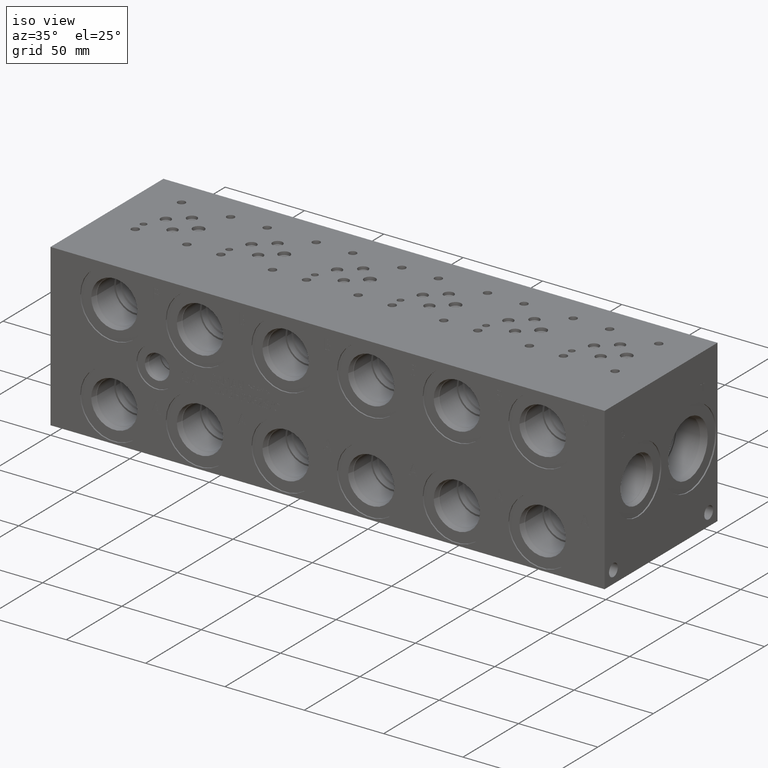
[diagram: clean part render]
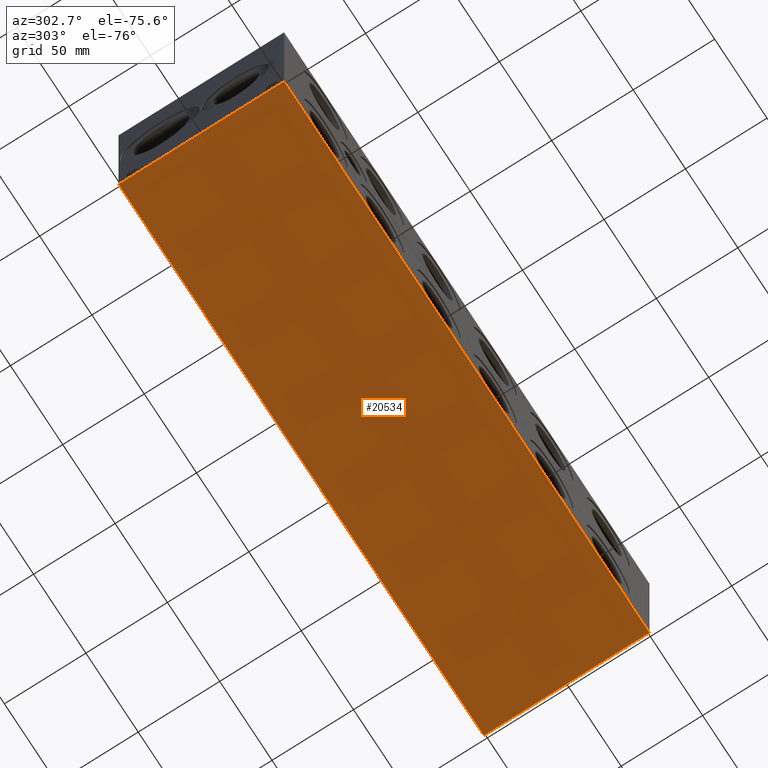
[diagram: tour spotlight — one face highlighted and labeled with its STEP entity id]
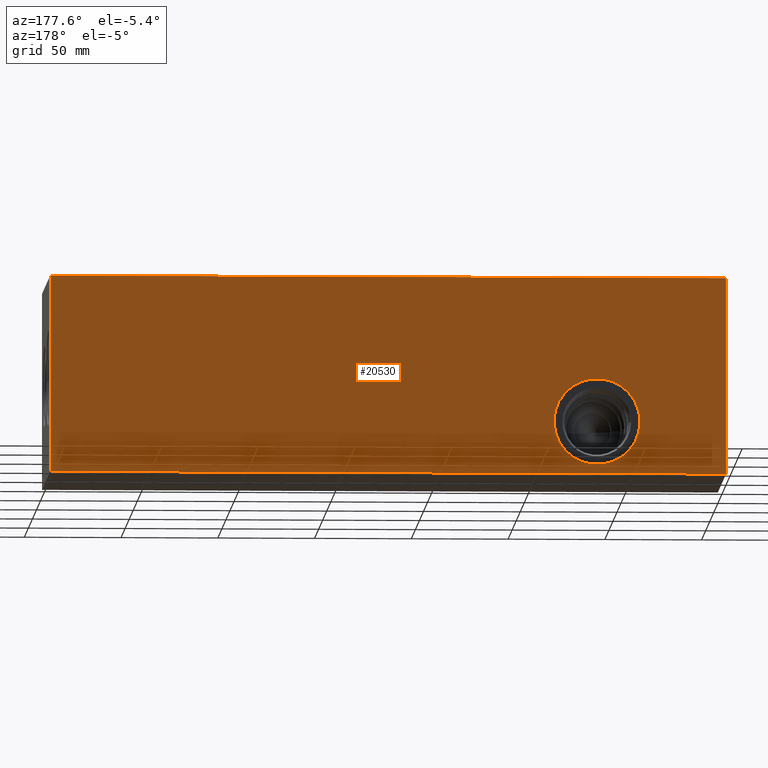
[diagram: tour spotlight — one face highlighted and labeled with its STEP entity id]
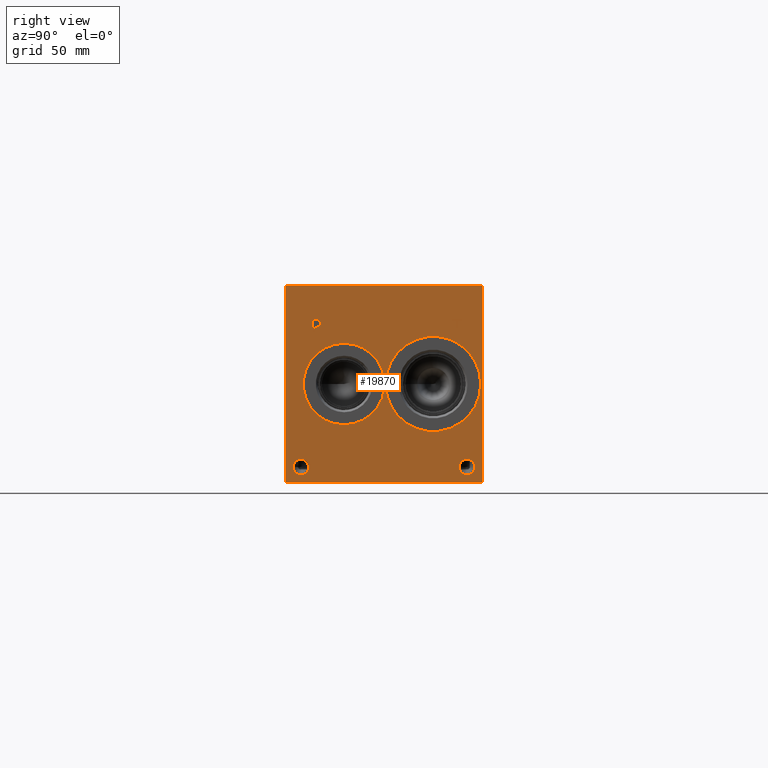
[diagram: tour spotlight — one face highlighted and labeled with its STEP entity id]
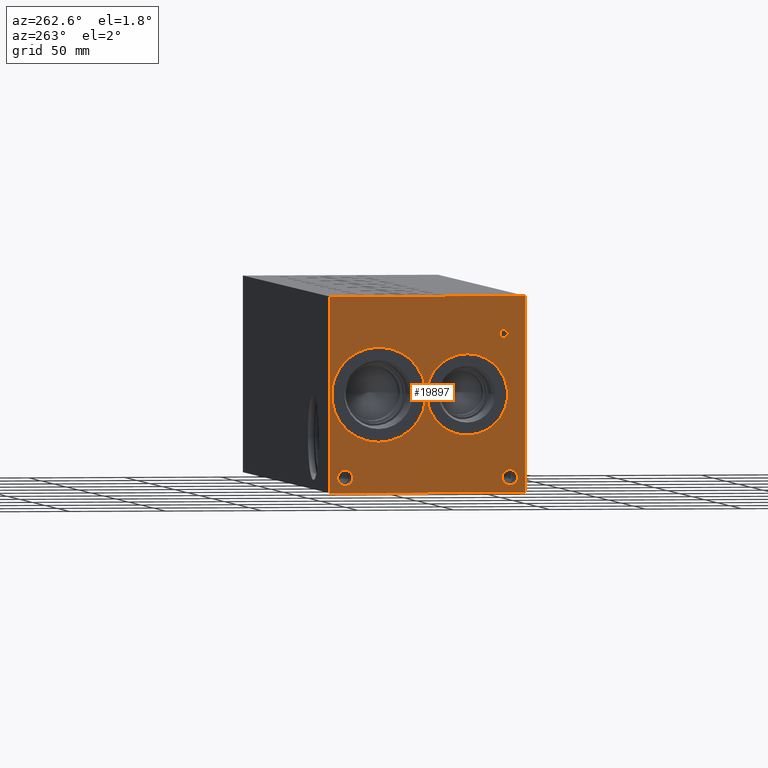
[diagram: tour spotlight — one face highlighted and labeled with its STEP entity id]
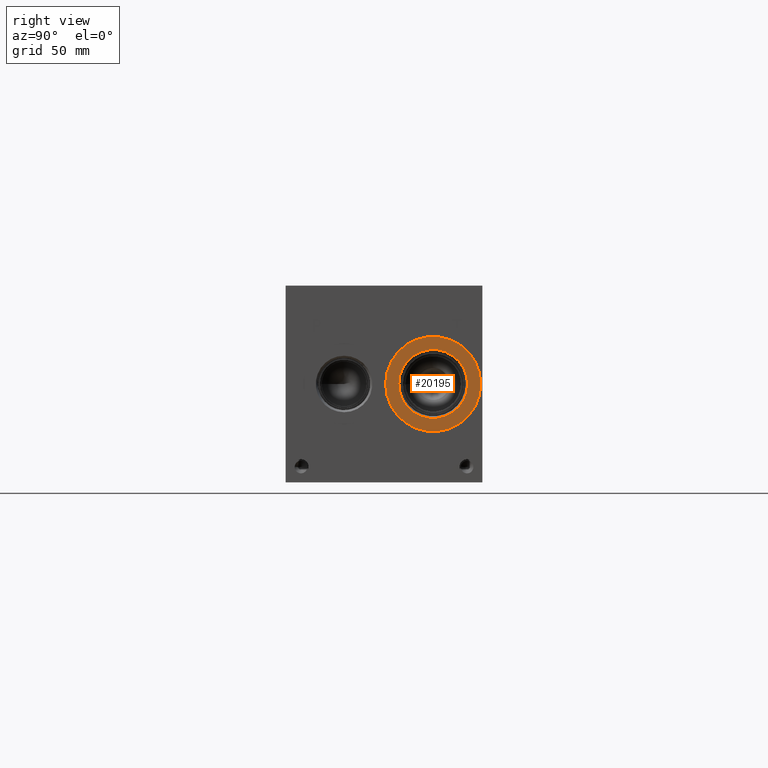
[diagram: tour spotlight — one face highlighted and labeled with its STEP entity id]
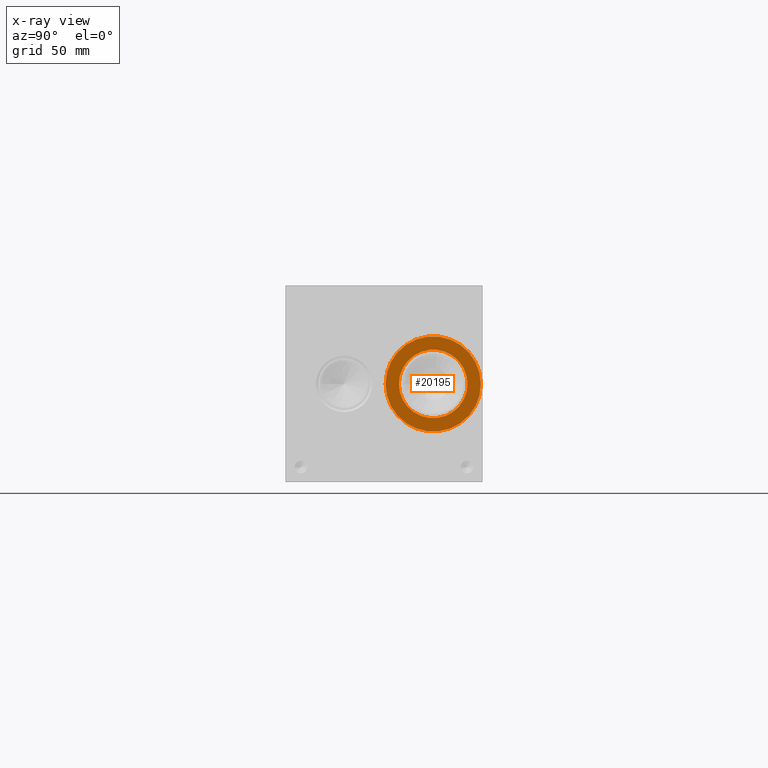
[diagram: x-ray of the same camera — body ghosted, this tour face saturated]
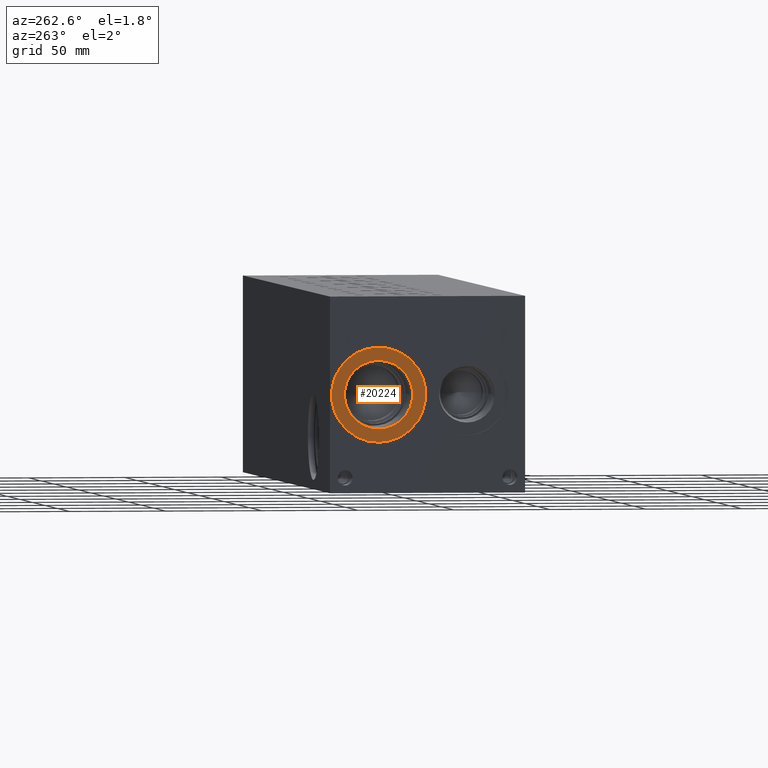
[diagram: tour spotlight — one face highlighted and labeled with its STEP entity id]
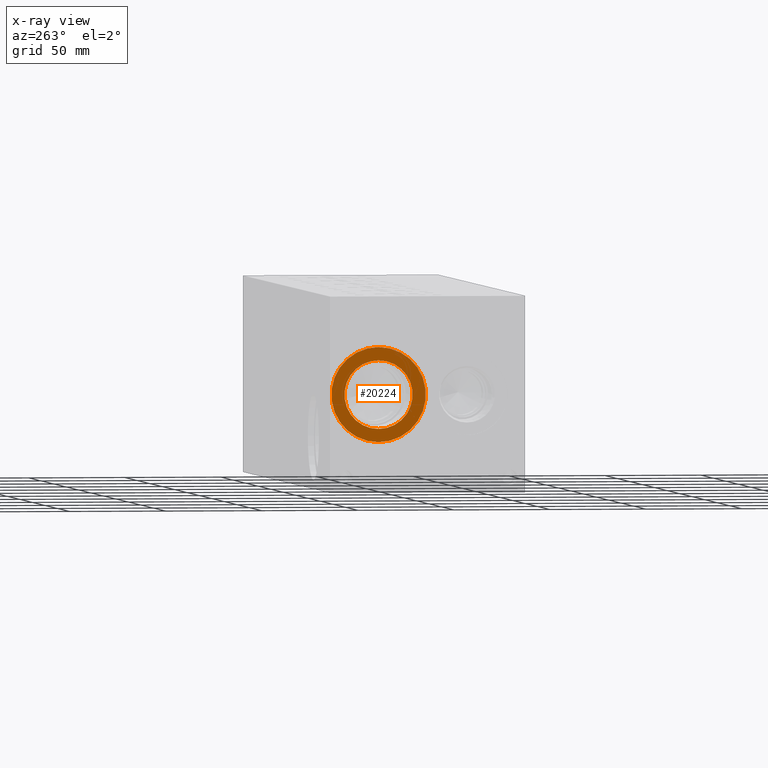
[diagram: x-ray of the same camera — body ghosted, this tour face saturated]
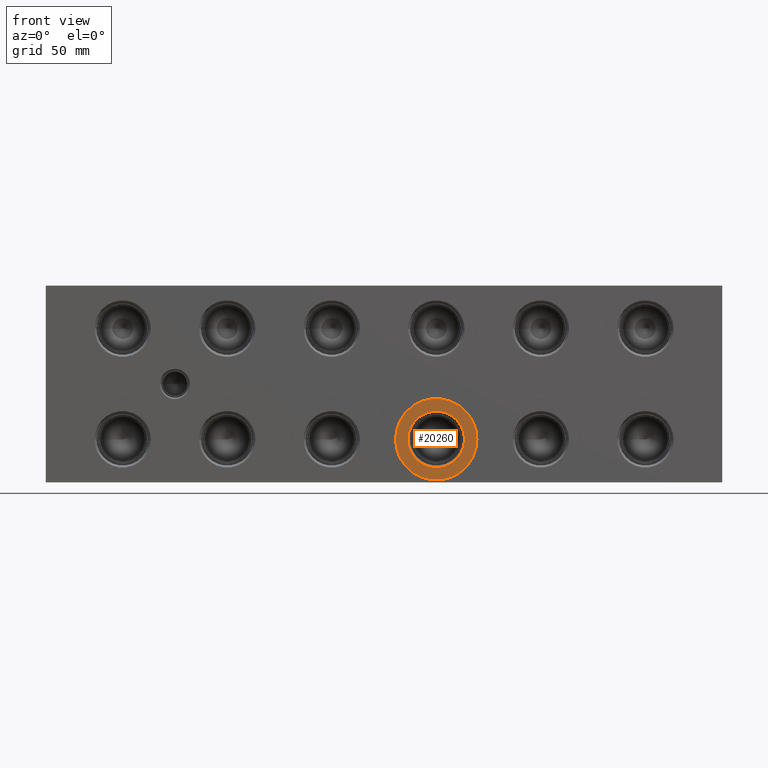
[diagram: tour spotlight — one face highlighted and labeled with its STEP entity id]
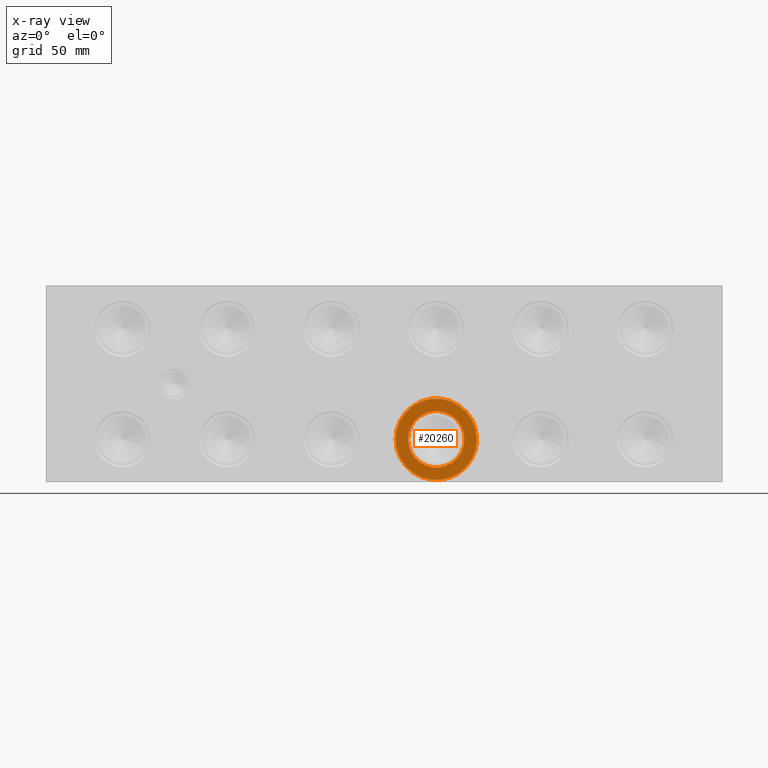
[diagram: x-ray of the same camera — body ghosted, this tour face saturated]
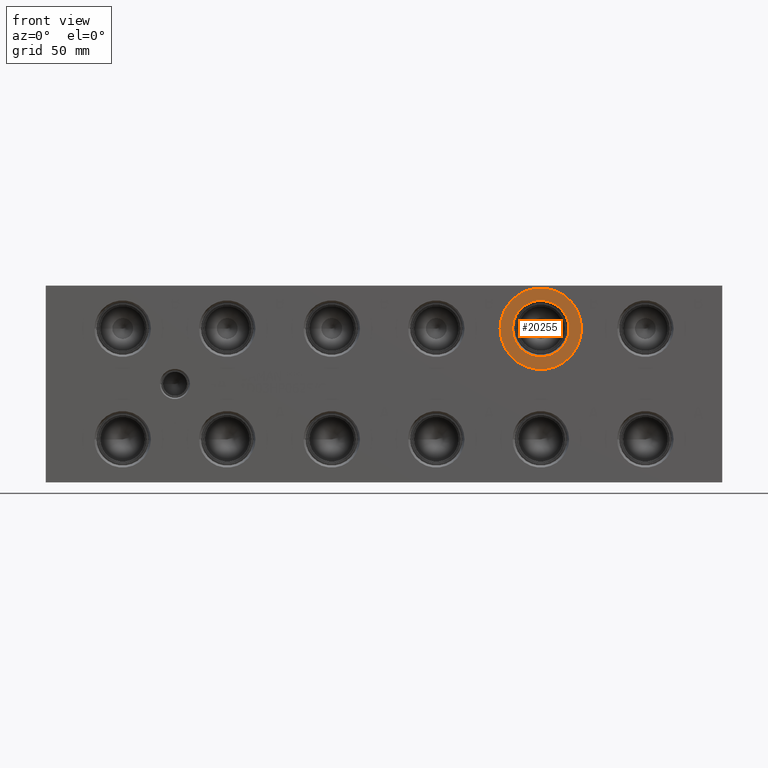
[diagram: tour spotlight — one face highlighted and labeled with its STEP entity id]
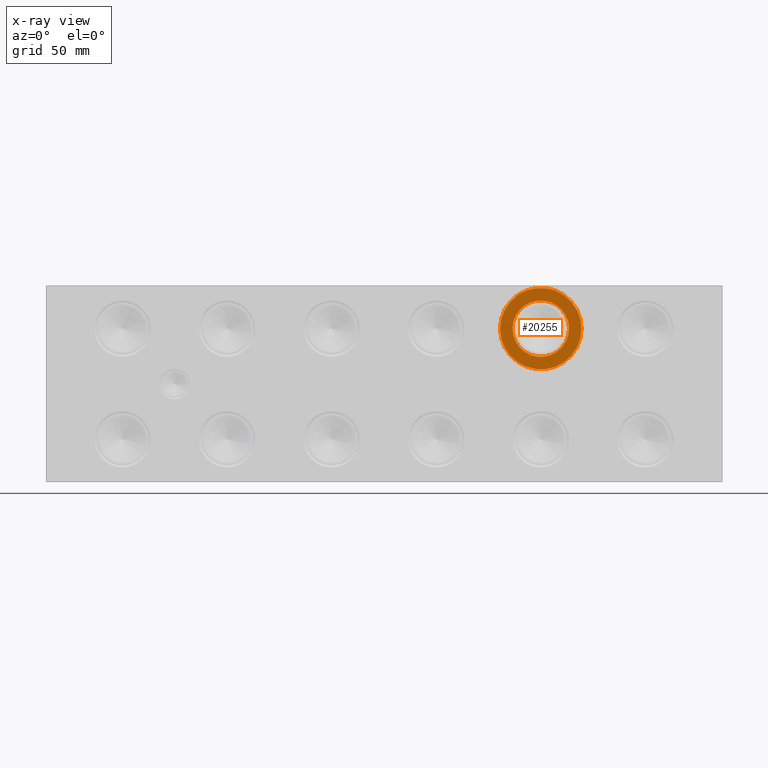
[diagram: x-ray of the same camera — body ghosted, this tour face saturated]
A machine part: a face-by-face anatomy tour. The part has 1075 B-rep faces; the first image is the clean iso view, then the 8 largest visible faces are spotlighted one at a time (largest first), each with its STEP entity span.

Face 1 — auxiliary view, entity #20534. In plain terms, the highlighted planar face has unit normal (0, 0, 1).
Definition (entity closure, byte-faithful):
#3036=FACE_OUTER_BOUND('',#4319,.T.);
#4319=EDGE_LOOP('',(#18293,#18294,#18295,#18296));
#4353=LINE('',#26873,#6044);
#5222=LINE('',#31483,#6913);
#5281=LINE('',#31755,#6972);
#6009=LINE('',#35896,#7700);
#6044=VECTOR('',#22130,10.);
#6913=VECTOR('',#23545,10.);
#6972=VECTOR('',#23658,10.);
#7700=VECTOR('',#26792,10.);
#7724=VERTEX_POINT('',#26871);
#7725=VERTEX_POINT('',#26872);
#8601=VERTEX_POINT('',#31482);
#8659=VERTEX_POINT('',#31754);
#9735=EDGE_CURVE('',#7724,#7725,#4353,.T.);
#10976=EDGE_CURVE('',#7725,#8601,#5222,.T.);
#11059=EDGE_CURVE('',#8659,#7724,#5281,.T.);
#12565=EDGE_CURVE('',#8601,#8659,#6009,.T.);
#18293=ORIENTED_EDGE('',*,*,#9735,.F.);
#18294=ORIENTED_EDGE('',*,*,#11059,.F.);
#18295=ORIENTED_EDGE('',*,*,#12565,.F.);
#18296=ORIENTED_EDGE('',*,*,#10976,.F.);
#18805=PLANE('',#22068);
#20534=ADVANCED_FACE('',(#3036),#18805,.F.);
#22068=AXIS2_PLACEMENT_3D('',#35901,#26800,#26801);
#22130=DIRECTION('',(1.,0.,0.));
#23545=DIRECTION('',(0.,1.,0.));
#23658=DIRECTION('',(0.,-1.,0.));
#26792=DIRECTION('',(-1.,0.,0.));
#26800=DIRECTION('center_axis',(0.,0.,1.));
#26801=DIRECTION('ref_axis',(1.,0.,0.));
#26871=CARTESIAN_POINT('',(0.,0.,0.));
#26872=CARTESIAN_POINT('',(349.25,0.,0.));
#26873=CARTESIAN_POINT('',(0.,0.,0.));
#31482=CARTESIAN_POINT('',(349.25,101.6,0.));
#31483=CARTESIAN_POINT('',(349.25,0.,0.));
#31754=CARTESIAN_POINT('',(0.,101.6,0.));
#31755=CARTESIAN_POINT('',(0.,101.6,0.));
#35896=CARTESIAN_POINT('',(349.25,101.6,0.));
#35901=CARTESIAN_POINT('Origin',(174.625,50.8,0.));

Face 2 — auxiliary view, entity #20530. In plain terms, the highlighted planar face has unit normal (0, 1, 0).
Definition (entity closure, byte-faithful):
#622=CIRCLE('',#21031,22.225);
#623=CIRCLE('',#21032,22.225);
#1907=FACE_BOUND('',#4261,.T.);
#3032=FACE_OUTER_BOUND('',#4260,.T.);
#4260=EDGE_LOOP('',(#18161,#18162,#18163,#18164));
#4261=EDGE_LOOP('',(#18165,#18166));
#5223=LINE('',#31485,#6914);
#5283=LINE('',#31758,#6974);
#6009=LINE('',#35896,#7700);
#6010=LINE('',#35897,#7701);
#6914=VECTOR('',#23546,10.);
#6974=VECTOR('',#23660,10.);
#7700=VECTOR('',#26792,10.);
#7701=VECTOR('',#26793,10.);
#8601=VERTEX_POINT('',#31482);
#8602=VERTEX_POINT('',#31484);
#8659=VERTEX_POINT('',#31754);
#8660=VERTEX_POINT('',#31756);
#8980=VERTEX_POINT('',#33817);
#8981=VERTEX_POINT('',#33818);
#10977=EDGE_CURVE('',#8601,#8602,#5223,.T.);
#11061=EDGE_CURVE('',#8659,#8660,#5283,.T.);
#11596=EDGE_CURVE('',#8980,#8981,#622,.T.);
#11597=EDGE_CURVE('',#8981,#8980,#623,.T.);
#12565=EDGE_CURVE('',#8601,#8659,#6009,.T.);
#12566=EDGE_CURVE('',#8602,#8660,#6010,.T.);
#18161=ORIENTED_EDGE('',*,*,#12565,.T.);
#18162=ORIENTED_EDGE('',*,*,#11061,.T.);
#18163=ORIENTED_EDGE('',*,*,#12566,.F.);
#18164=ORIENTED_EDGE('',*,*,#10977,.F.);
#18165=ORIENTED_EDGE('',*,*,#11596,.T.);
#18166=ORIENTED_EDGE('',*,*,#11597,.T.);
#18801=PLANE('',#22064);
#20530=ADVANCED_FACE('',(#3032,#1907),#18801,.T.);
#21031=AXIS2_PLACEMENT_3D('',#33819,#24401,#24402);
#21032=AXIS2_PLACEMENT_3D('',#33820,#24403,#24404);
#22064=AXIS2_PLACEMENT_3D('',#35895,#26790,#26791);
#23546=DIRECTION('',(0.,0.,1.));
#23660=DIRECTION('',(0.,0.,1.));
#24401=DIRECTION('center_axis',(0.,-1.,0.));
#24402=DIRECTION('ref_axis',(1.,0.,0.));
#24403=DIRECTION('center_axis',(0.,-1.,0.));
#24404=DIRECTION('ref_axis',(1.,0.,0.));
#26790=DIRECTION('center_axis',(0.,1.,0.));
#26791=DIRECTION('ref_axis',(-1.,0.,0.));
#26792=DIRECTION('',(-1.,0.,0.));
#26793=DIRECTION('',(-1.,0.,0.));
#31482=CARTESIAN_POINT('',(349.25,101.6,0.));
#31484=CARTESIAN_POINT('',(349.25,101.6,101.6));
#31485=CARTESIAN_POINT('',(349.25,101.6,0.));
#31754=CARTESIAN_POINT('',(0.,101.6,0.));
#31756=CARTESIAN_POINT('',(0.,101.6,101.6));
#31758=CARTESIAN_POINT('',(0.,101.6,0.));
#33817=CARTESIAN_POINT('',(88.9,101.6,26.9748));
#33818=CARTESIAN_POINT('',(44.45,101.6,26.9748));
#33819=CARTESIAN_POINT('Origin',(66.675,101.6,26.9748));
#33820=CARTESIAN_POINT('Origin',(66.675,101.6,26.9748));
#35895=CARTESIAN_POINT('Origin',(349.25,101.6,0.));
#35896=CARTESIAN_POINT('',(349.25,101.6,0.));
#35897=CARTESIAN_POINT('',(349.25,101.6,101.6));

Face 3 — right view, entity #19870. In plain terms, the highlighted planar face has unit normal (1, 0, 0).
Definition (entity closure, byte-faithful):
#606=CIRCLE('',#20835,24.5618);
#607=CIRCLE('',#20836,24.5618);
#608=CIRCLE('',#20837,21.0185);
#609=CIRCLE('',#20838,21.0185);
#610=CIRCLE('',#20839,3.9624);
#611=CIRCLE('',#20840,3.9624);
#612=CIRCLE('',#20841,3.9624);
#613=CIRCLE('',#20842,3.9624);
#1606=B_SPLINE_CURVE_WITH_KNOTS('',2,(#31384,#31385,#31386,#31387),
 .UNSPECIFIED.,.F.,.F.,(3,1,3),(0.,1.,2.),.UNSPECIFIED.);
#1608=B_SPLINE_CURVE_WITH_KNOTS('',2,(#31405,#31406,#31407,#31408),
 .UNSPECIFIED.,.F.,.F.,(3,1,3),(0.,1.,2.),.UNSPECIFIED.);
#1610=B_SPLINE_CURVE_WITH_KNOTS('',2,(#31454,#31455,#31456,#31457),
 .UNSPECIFIED.,.F.,.F.,(3,1,3),(0.,1.,2.),.UNSPECIFIED.);
#1612=B_SPLINE_CURVE_WITH_KNOTS('',2,(#31472,#31473,#31474,#31475),
 .UNSPECIFIED.,.F.,.F.,(3,1,3),(0.,1.,2.),.UNSPECIFIED.);
#1814=FACE_BOUND('',#3508,.T.);
#1815=FACE_BOUND('',#3509,.T.);
#1816=FACE_BOUND('',#3510,.T.);
#1817=FACE_BOUND('',#3511,.T.);
#1818=FACE_BOUND('',#3512,.T.);
#1819=FACE_BOUND('',#3513,.T.);
#2372=FACE_OUTER_BOUND('',#3507,.T.);
#3507=EDGE_LOOP('',(#14947,#14948,#14949,#14950));
#3508=EDGE_LOOP('',(#14951,#14952));
#3509=EDGE_LOOP('',(#14953,#14954));
#3510=EDGE_LOOP('',(#14955,#14956));
#3511=EDGE_LOOP('',(#14957,#14958));
#3512=EDGE_LOOP('',(#14959,#14960,#14961,#14962,#14963,#14964,#14965,#14966));
#3513=EDGE_LOOP('',(#14967,#14968,#14969,#14970,#14971,#14972,#14973,#14974,
#14975));
#4354=LINE('',#26875,#6045);
#5206=LINE('',#31417,#6897);
#5209=LINE('',#31423,#6900);
#5212=LINE('',#31429,#6903);
#5215=LINE('',#31435,#6906);
#5218=LINE('',#31441,#6909);
#5222=LINE('',#31483,#6913);
#5223=LINE('',#31485,#6914);
#5224=LINE('',#31486,#6915);
#5225=LINE('',#31505,#6916);
#5226=LINE('',#31507,#6917);
#5227=LINE('',#31509,#6918);
#5228=LINE('',#31511,#6919);
#5229=LINE('',#31513,#6920);
#5230=LINE('',#31515,#6921);
#5231=LINE('',#31517,#6922);
#5232=LINE('',#31518,#6923);
#6045=VECTOR('',#22131,10.);
#6897=VECTOR('',#23517,10.);
#6900=VECTOR('',#23522,10.);
#6903=VECTOR('',#23527,10.);
#6906=VECTOR('',#23532,10.);
#6909=VECTOR('',#23537,10.);
#6913=VECTOR('',#23545,10.);
#6914=VECTOR('',#23546,10.);
#6915=VECTOR('',#23547,10.);
#6916=VECTOR('',#23564,10.);
#6917=VECTOR('',#23565,10.);
#6918=VECTOR('',#23566,10.);
#6919=VECTOR('',#23567,10.);
#6920=VECTOR('',#23568,10.);
#6921=VECTOR('',#23569,10.);
#6922=VECTOR('',#23570,10.);
#6923=VECTOR('',#23571,10.);
#7725=VERTEX_POINT('',#26872);
#7726=VERTEX_POINT('',#26874);
#8583=VERTEX_POINT('',#31382);
#8584=VERTEX_POINT('',#31383);
#8587=VERTEX_POINT('',#31404);
#8589=VERTEX_POINT('',#31416);
#8591=VERTEX_POINT('',#31422);
#8593=VERTEX_POINT('',#31428);
#8595=VERTEX_POINT('',#31434);
#8597=VERTEX_POINT('',#31440);
#8599=VERTEX_POINT('',#31453);
#8601=VERTEX_POINT('',#31482);
#8602=VERTEX_POINT('',#31484);
#8603=VERTEX_POINT('',#31487);
#8604=VERTEX_POINT('',#31488);
#8605=VERTEX_POINT('',#31491);
#8606=VERTEX_POINT('',#31492);
#8607=VERTEX_POINT('',#31495);
#8608=VERTEX_POINT('',#31496);
#8609=VERTEX_POINT('',#31499);
#8610=VERTEX_POINT('',#31500);
#8611=VERTEX_POINT('',#31503);
#8612=VERTEX_POINT('',#31504);
#8613=VERTEX_POINT('',#31506);
#8614=VERTEX_POINT('',#31508);
#8615=VERTEX_POINT('',#31510);
#8616=VERTEX_POINT('',#31512);
#8617=VERTEX_POINT('',#31514);
#8618=VERTEX_POINT('',#31516);
#9736=EDGE_CURVE('',#7725,#7726,#4354,.T.);
#10949=EDGE_CURVE('',#8583,#8584,#1606,.T.);
#10953=EDGE_CURVE('',#8587,#8583,#1608,.T.);
#10956=EDGE_CURVE('',#8589,#8587,#5206,.T.);
#10959=EDGE_CURVE('',#8591,#8589,#5209,.T.);
#10962=EDGE_CURVE('',#8593,#8591,#5212,.T.);
#10965=EDGE_CURVE('',#8595,#8593,#5215,.T.);
#10968=EDGE_CURVE('',#8597,#8595,#5218,.T.);
#10971=EDGE_CURVE('',#8599,#8597,#1610,.T.);
#10974=EDGE_CURVE('',#8584,#8599,#1612,.T.);
#10976=EDGE_CURVE('',#7725,#8601,#5222,.T.);
#10977=EDGE_CURVE('',#8601,#8602,#5223,.T.);
#10978=EDGE_CURVE('',#7726,#8602,#5224,.T.);
#10979=EDGE_CURVE('',#8603,#8604,#606,.T.);
#10980=EDGE_CURVE('',#8604,#8603,#607,.T.);
#10981=EDGE_CURVE('',#8605,#8606,#608,.T.);
#10982=EDGE_CURVE('',#8606,#8605,#609,.T.);
#10983=EDGE_CURVE('',#8607,#8608,#610,.T.);
#10984=EDGE_CURVE('',#8608,#8607,#611,.T.);
#10985=EDGE_CURVE('',#8609,#8610,#612,.T.);
#10986=EDGE_CURVE('',#8610,#8609,#613,.T.);
#10987=EDGE_CURVE('',#8611,#8612,#5225,.T.);
#10988=EDGE_CURVE('',#8612,#8613,#5226,.T.);
#10989=EDGE_CURVE('',#8613,#8614,#5227,.T.);
#10990=EDGE_CURVE('',#8614,#8615,#5228,.T.);
#10991=EDGE_CURVE('',#8615,#8616,#5229,.T.);
#10992=EDGE_CURVE('',#8616,#8617,#5230,.T.);
#10993=EDGE_CURVE('',#8617,#8618,#5231,.T.);
#10994=EDGE_CURVE('',#8618,#8611,#5232,.T.);
#14947=ORIENTED_EDGE('',*,*,#10976,.T.);
#14948=ORIENTED_EDGE('',*,*,#10977,.T.);
#14949=ORIENTED_EDGE('',*,*,#10978,.F.);
#14950=ORIENTED_EDGE('',*,*,#9736,.F.);
#14951=ORIENTED_EDGE('',*,*,#10979,.T.);
#14952=ORIENTED_EDGE('',*,*,#10980,.T.);
#14953=ORIENTED_EDGE('',*,*,#10981,.T.);
#14954=ORIENTED_EDGE('',*,*,#10982,.T.);
#14955=ORIENTED_EDGE('',*,*,#10983,.T.);
#14956=ORIENTED_EDGE('',*,*,#10984,.T.);
#14957=ORIENTED_EDGE('',*,*,#10985,.T.);
#14958=ORIENTED_EDGE('',*,*,#10986,.T.);
#14959=ORIENTED_EDGE('',*,*,#10987,.T.);
#14960=ORIENTED_EDGE('',*,*,#10988,.T.);
#14961=ORIENTED_EDGE('',*,*,#10989,.T.);
#14962=ORIENTED_EDGE('',*,*,#10990,.T.);
#14963=ORIENTED_EDGE('',*,*,#10991,.T.);
#14964=ORIENTED_EDGE('',*,*,#10992,.T.);
#14965=ORIENTED_EDGE('',*,*,#10993,.T.);
#14966=ORIENTED_EDGE('',*,*,#10994,.T.);
#14967=ORIENTED_EDGE('',*,*,#10949,.T.);
#14968=ORIENTED_EDGE('',*,*,#10974,.T.);
#14969=ORIENTED_EDGE('',*,*,#10971,.T.);
#14970=ORIENTED_EDGE('',*,*,#10968,.T.);
#14971=ORIENTED_EDGE('',*,*,#10965,.T.);
#14972=ORIENTED_EDGE('',*,*,#10962,.T.);
#14973=ORIENTED_EDGE('',*,*,#10959,.T.);
#14974=ORIENTED_EDGE('',*,*,#10956,.T.);
#14975=ORIENTED_EDGE('',*,*,#10953,.T.);
#18556=PLANE('',#20834);
#19870=ADVANCED_FACE('',(#2372,#1814,#1815,#1816,#1817,#1818,#1819),#18556,
 .T.);
#20834=AXIS2_PLACEMENT_3D('',#31481,#23543,#23544);
#20835=AXIS2_PLACEMENT_3D('',#31489,#23548,#23549);
#20836=AXIS2_PLACEMENT_3D('',#31490,#23550,#23551);
#20837=AXIS2_PLACEMENT_3D('',#31493,#23552,#23553);
#20838=AXIS2_PLACEMENT_3D('',#31494,#23554,#23555);
#20839=AXIS2_PLACEMENT_3D('',#31497,#23556,#23557);
#20840=AXIS2_PLACEMENT_3D('',#31498,#23558,#23559);
#20841=AXIS2_PLACEMENT_3D('',#31501,#23560,#23561);
#20842=AXIS2_PLACEMENT_3D('',#31502,#23562,#23563);
#22131=DIRECTION('',(0.,0.,1.));
#23517=DIRECTION('',(0.,1.,0.));
#23522=DIRECTION('',(0.,0.,1.));
#23527=DIRECTION('',(0.,-1.,0.));
#23532=DIRECTION('',(0.,0.,-1.));
#23537=DIRECTION('',(0.,-1.,0.));
#23543=DIRECTION('center_axis',(1.,0.,0.));
#23544=DIRECTION('ref_axis',(0.,1.,0.));
#23545=DIRECTION('',(0.,1.,0.));
#23546=DIRECTION('',(0.,0.,1.));
#23547=DIRECTION('',(0.,1.,0.));
#23548=DIRECTION('center_axis',(-1.,0.,0.));
#23549=DIRECTION('ref_axis',(0.,1.,0.));
#23550=DIRECTION('center_axis',(-1.,0.,0.));
#23551=DIRECTION('ref_axis',(0.,1.,0.));
#23552=DIRECTION('center_axis',(-1.,0.,0.));
#23553=DIRECTION('ref_axis',(0.,0.,-1.));
#23554=DIRECTION('center_axis',(-1.,0.,0.));
#23555=DIRECTION('ref_axis',(0.,0.,-1.));
#23556=DIRECTION('center_axis',(-1.,0.,0.));
#23557=DIRECTION('ref_axis',(0.,1.,0.));
#23558=DIRECTION('center_axis',(-1.,0.,0.));
#23559=DIRECTION('ref_axis',(0.,1.,0.));
#23560=DIRECTION('center_axis',(-1.,0.,0.));
#23561=DIRECTION('ref_axis',(0.,1.,0.));
#23562=DIRECTION('center_axis',(-1.,0.,0.));
#23563=DIRECTION('ref_axis',(0.,1.,0.));
#23564=DIRECTION('',(0.,-1.,0.));
#23565=DIRECTION('',(0.,0.,1.));
#23566=DIRECTION('',(0.,-1.,0.));
#23567=DIRECTION('',(0.,0.,1.));
#23568=DIRECTION('',(0.,1.,0.));
#23569=DIRECTION('',(0.,0.,-1.));
#23570=DIRECTION('',(0.,-1.,0.));
#23571=DIRECTION('',(0.,0.,-1.));
#26872=CARTESIAN_POINT('',(349.25,0.,0.));
#26874=CARTESIAN_POINT('',(349.25,0.,101.6));
#26875=CARTESIAN_POINT('',(349.25,0.,0.));
#31382=CARTESIAN_POINT('',(349.25,17.3117672023594,83.6777681439707));
#31383=CARTESIAN_POINT('',(349.25,18.068209654532,82.159737372604));
#31384=CARTESIAN_POINT('Ctrl Pts',(349.25,17.3117672023594,83.6777681439707));
#31385=CARTESIAN_POINT('Ctrl Pts',(349.25,17.6668320268486,83.4359123939564));
#31386=CARTESIAN_POINT('Ctrl Pts',(349.25,18.068209654532,82.6897616758269));
#31387=CARTESIAN_POINT('Ctrl Pts',(349.25,18.068209654532,82.159737372604));
#31404=CARTESIAN_POINT('',(349.25,15.6496521543883,84.0739999046326));
#31405=CARTESIAN_POINT('Ctrl Pts',(349.25,15.6496521543883,84.0739999046326));
#31406=CARTESIAN_POINT('Ctrl Pts',(349.25,16.2156975267624,84.0739999046326));
#31407=CARTESIAN_POINT('Ctrl Pts',(349.25,17.008161048086,83.8887486918556));
#31408=CARTESIAN_POINT('Ctrl Pts',(349.25,17.3117672023594,83.6777681439707));
#31416=CARTESIAN_POINT('',(349.25,14.0544333776978,84.0739999046326));
#31417=CARTESIAN_POINT('',(349.25,7.0272166888489,84.0739999046326));
#31422=CARTESIAN_POINT('',(349.25,14.0544333776978,77.724));
#31423=CARTESIAN_POINT('',(349.25,14.0544333776978,38.862));
#31428=CARTESIAN_POINT('',(349.25,14.8983555692373,77.724));
#31429=CARTESIAN_POINT('',(349.25,7.44917778461864,77.724));
#31434=CARTESIAN_POINT('',(349.25,14.8983555692373,80.0910988299279));
#31435=CARTESIAN_POINT('',(349.25,14.8983555692373,40.0455494149639));
#31440=CARTESIAN_POINT('',(349.25,15.6136310852372,80.0910988299279));
#31441=CARTESIAN_POINT('',(349.25,7.80681554261862,80.0910988299279));
#31453=CARTESIAN_POINT('',(349.25,17.5124560162011,80.7497698086904));
#31454=CARTESIAN_POINT('Ctrl Pts',(349.25,17.5124560162011,80.7497698086904));
#31455=CARTESIAN_POINT('Ctrl Pts',(349.25,17.1831205268198,80.4255801863307));
#31456=CARTESIAN_POINT('Ctrl Pts',(349.25,16.2928855320861,80.0910988299279));
#31457=CARTESIAN_POINT('Ctrl Pts',(349.25,15.6136310852372,80.0910988299279));
#31472=CARTESIAN_POINT('Ctrl Pts',(349.25,18.068209654532,82.159737372604));
#31473=CARTESIAN_POINT('Ctrl Pts',(349.25,18.068209654532,81.7480680108774));
#31474=CARTESIAN_POINT('Ctrl Pts',(349.25,17.7748952343018,81.0070631597695));
#31475=CARTESIAN_POINT('Ctrl Pts',(349.25,17.5124560162011,80.7497698086904));
#31481=CARTESIAN_POINT('Origin',(349.25,0.,0.));
#31482=CARTESIAN_POINT('',(349.25,101.6,0.));
#31483=CARTESIAN_POINT('',(349.25,0.,0.));
#31484=CARTESIAN_POINT('',(349.25,101.6,101.6));
#31485=CARTESIAN_POINT('',(349.25,101.6,0.));
#31486=CARTESIAN_POINT('',(349.25,0.,101.6));
#31487=CARTESIAN_POINT('',(349.25,100.7618,50.8));
#31488=CARTESIAN_POINT('',(349.25,51.6382,50.8));
#31489=CARTESIAN_POINT('Origin',(349.25,76.2,50.8));
#31490=CARTESIAN_POINT('Origin',(349.25,76.2,50.8));
#31491=CARTESIAN_POINT('',(349.25,30.1752,29.7815));
#31492=CARTESIAN_POINT('',(349.25,30.1752,71.8185));
#31493=CARTESIAN_POINT('Origin',(349.25,30.1752,50.8));
#31494=CARTESIAN_POINT('Origin',(349.25,30.1752,50.8));
#31495=CARTESIAN_POINT('',(349.25,11.8872,7.9248));
#31496=CARTESIAN_POINT('',(349.25,3.9624,7.9248));
#31497=CARTESIAN_POINT('Origin',(349.25,7.9248,7.9248));
#31498=CARTESIAN_POINT('Origin',(349.25,7.9248,7.9248));
#31499=CARTESIAN_POINT('',(349.25,97.6376,7.9248));
#31500=CARTESIAN_POINT('',(349.25,89.7128,7.9248));
#31501=CARTESIAN_POINT('Origin',(349.25,93.6752,7.9248));
#31502=CARTESIAN_POINT('Origin',(349.25,93.6752,7.9248));
#31503=CARTESIAN_POINT('',(349.25,88.821165271453,77.724));
#31504=CARTESIAN_POINT('',(349.25,87.9772430799135,77.724));
#31505=CARTESIAN_POINT('',(349.25,44.4105826357265,77.724));
#31506=CARTESIAN_POINT('',(349.25,87.9772430799135,83.3227033194815));
#31507=CARTESIAN_POINT('',(349.25,87.9772430799135,38.862));
#31508=CARTESIAN_POINT('',(349.25,85.8468541329784,83.3227033194815));
#31509=CARTESIAN_POINT('',(349.25,43.9886215399568,83.3227033194815));
#31510=CARTESIAN_POINT('',(349.25,85.8468541329784,84.0739999046326));
#31511=CARTESIAN_POINT('',(349.25,85.8468541329784,41.6613516597408));
#31512=CARTESIAN_POINT('',(349.25,90.9515542183881,84.0739999046326));
#31513=CARTESIAN_POINT('',(349.25,42.9234270664892,84.0739999046326));
#31514=CARTESIAN_POINT('',(349.25,90.9515542183881,83.3227033194815));
#31515=CARTESIAN_POINT('',(349.25,90.9515542183881,42.0369999523163));
#31516=CARTESIAN_POINT('',(349.25,88.821165271453,83.3227033194815));
#31517=CARTESIAN_POINT('',(349.25,45.475777109194,83.3227033194815));
#31518=CARTESIAN_POINT('',(349.25,88.821165271453,41.6613516597408));

Face 4 — auxiliary view, entity #19897. In plain terms, the highlighted planar face has unit normal (-1, 0, 0).
Definition (entity closure, byte-faithful):
#614=CIRCLE('',#20862,24.5618);
#615=CIRCLE('',#20863,24.5618);
#616=CIRCLE('',#20864,21.0185);
#617=CIRCLE('',#20865,21.0185);
#618=CIRCLE('',#20866,3.9624);
#619=CIRCLE('',#20867,3.9624);
#620=CIRCLE('',#20868,3.9624);
#621=CIRCLE('',#20869,3.9624);
#1622=B_SPLINE_CURVE_WITH_KNOTS('',2,(#31656,#31657,#31658,#31659),
 .UNSPECIFIED.,.F.,.F.,(3,1,3),(0.,1.,2.),.UNSPECIFIED.);
#1624=B_SPLINE_CURVE_WITH_KNOTS('',2,(#31677,#31678,#31679,#31680),
 .UNSPECIFIED.,.F.,.F.,(3,1,3),(0.,1.,2.),.UNSPECIFIED.);
#1626=B_SPLINE_CURVE_WITH_KNOTS('',2,(#31726,#31727,#31728,#31729),
 .UNSPECIFIED.,.F.,.F.,(3,1,3),(0.,1.,2.),.UNSPECIFIED.);
#1628=B_SPLINE_CURVE_WITH_KNOTS('',2,(#31744,#31745,#31746,#31747),
 .UNSPECIFIED.,.F.,.F.,(3,1,3),(0.,1.,2.),.UNSPECIFIED.);
#1821=FACE_BOUND('',#3542,.T.);
#1822=FACE_BOUND('',#3543,.T.);
#1823=FACE_BOUND('',#3544,.T.);
#1824=FACE_BOUND('',#3545,.T.);
#1825=FACE_BOUND('',#3546,.T.);
#1826=FACE_BOUND('',#3547,.T.);
#2399=FACE_OUTER_BOUND('',#3541,.T.);
#3541=EDGE_LOOP('',(#15096,#15097,#15098,#15099));
#3542=EDGE_LOOP('',(#15100,#15101));
#3543=EDGE_LOOP('',(#15102,#15103));
#3544=EDGE_LOOP('',(#15104,#15105));
#3545=EDGE_LOOP('',(#15106,#15107));
#3546=EDGE_LOOP('',(#15108,#15109,#15110,#15111,#15112,#15113,#15114,#15115));
#3547=EDGE_LOOP('',(#15116,#15117,#15118,#15119,#15120,#15121,#15122,#15123,
#15124));
#4356=LINE('',#26878,#6047);
#5265=LINE('',#31689,#6956);
#5268=LINE('',#31695,#6959);
#5271=LINE('',#31701,#6962);
#5274=LINE('',#31707,#6965);
#5277=LINE('',#31713,#6968);
#5281=LINE('',#31755,#6972);
#5282=LINE('',#31757,#6973);
#5283=LINE('',#31758,#6974);
#5284=LINE('',#31777,#6975);
#5285=LINE('',#31779,#6976);
#5286=LINE('',#31781,#6977);
#5287=LINE('',#31783,#6978);
#5288=LINE('',#31785,#6979);
#5289=LINE('',#31787,#6980);
#5290=LINE('',#31789,#6981);
#5291=LINE('',#31790,#6982);
#6047=VECTOR('',#22133,10.);
#6956=VECTOR('',#23630,10.);
#6959=VECTOR('',#23635,10.);
#6962=VECTOR('',#23640,10.);
#6965=VECTOR('',#23645,10.);
#6968=VECTOR('',#23650,10.);
#6972=VECTOR('',#23658,10.);
#6973=VECTOR('',#23659,10.);
#6974=VECTOR('',#23660,10.);
#6975=VECTOR('',#23677,10.);
#6976=VECTOR('',#23678,10.);
#6977=VECTOR('',#23679,10.);
#6978=VECTOR('',#23680,10.);
#6979=VECTOR('',#23681,10.);
#6980=VECTOR('',#23682,10.);
#6981=VECTOR('',#23683,10.);
#6982=VECTOR('',#23684,10.);
#7724=VERTEX_POINT('',#26871);
#7727=VERTEX_POINT('',#26876);
#8641=VERTEX_POINT('',#31654);
#8642=VERTEX_POINT('',#31655);
#8645=VERTEX_POINT('',#31676);
#8647=VERTEX_POINT('',#31688);
#8649=VERTEX_POINT('',#31694);
#8651=VERTEX_POINT('',#31700);
#8653=VERTEX_POINT('',#31706);
#8655=VERTEX_POINT('',#31712);
#8657=VERTEX_POINT('',#31725);
#8659=VERTEX_POINT('',#31754);
#8660=VERTEX_POINT('',#31756);
#8661=VERTEX_POINT('',#31759);
#8662=VERTEX_POINT('',#31760);
#8663=VERTEX_POINT('',#31763);
#8664=VERTEX_POINT('',#31764);
#8665=VERTEX_POINT('',#31767);
#8666=VERTEX_POINT('',#31768);
#8667=VERTEX_POINT('',#31771);
#8668=VERTEX_POINT('',#31772);
#8669=VERTEX_POINT('',#31775);
#8670=VERTEX_POINT('',#31776);
#8671=VERTEX_POINT('',#31778);
#8672=VERTEX_POINT('',#31780);
#8673=VERTEX_POINT('',#31782);
#8674=VERTEX_POINT('',#31784);
#8675=VERTEX_POINT('',#31786);
#8676=VERTEX_POINT('',#31788);
#9738=EDGE_CURVE('',#7724,#7727,#4356,.T.);
#11032=EDGE_CURVE('',#8641,#8642,#1622,.T.);
#11036=EDGE_CURVE('',#8645,#8641,#1624,.T.);
#11039=EDGE_CURVE('',#8647,#8645,#5265,.T.);
#11042=EDGE_CURVE('',#8649,#8647,#5268,.T.);
#11045=EDGE_CURVE('',#8651,#8649,#5271,.T.);
#11048=EDGE_CURVE('',#8653,#8651,#5274,.T.);
#11051=EDGE_CURVE('',#8655,#8653,#5277,.T.);
#11054=EDGE_CURVE('',#8657,#8655,#1626,.T.);
#11057=EDGE_CURVE('',#8642,#8657,#1628,.T.);
#11059=EDGE_CURVE('',#8659,#7724,#5281,.T.);
#11060=EDGE_CURVE('',#8660,#7727,#5282,.T.);
#11061=EDGE_CURVE('',#8659,#8660,#5283,.T.);
#11062=EDGE_CURVE('',#8661,#8662,#614,.T.);
#11063=EDGE_CURVE('',#8662,#8661,#615,.T.);
#11064=EDGE_CURVE('',#8663,#8664,#616,.T.);
#11065=EDGE_CURVE('',#8664,#8663,#617,.T.);
#11066=EDGE_CURVE('',#8665,#8666,#618,.T.);
#11067=EDGE_CURVE('',#8666,#8665,#619,.T.);
#11068=EDGE_CURVE('',#8667,#8668,#620,.T.);
#11069=EDGE_CURVE('',#8668,#8667,#621,.T.);
#11070=EDGE_CURVE('',#8669,#8670,#5284,.T.);
#11071=EDGE_CURVE('',#8670,#8671,#5285,.T.);
#11072=EDGE_CURVE('',#8671,#8672,#5286,.T.);
#11073=EDGE_CURVE('',#8672,#8673,#5287,.T.);
#11074=EDGE_CURVE('',#8673,#8674,#5288,.T.);
#11075=EDGE_CURVE('',#8674,#8675,#5289,.T.);
#11076=EDGE_CURVE('',#8675,#8676,#5290,.T.);
#11077=EDGE_CURVE('',#8676,#8669,#5291,.T.);
#15096=ORIENTED_EDGE('',*,*,#11059,.T.);
#15097=ORIENTED_EDGE('',*,*,#9738,.T.);
#15098=ORIENTED_EDGE('',*,*,#11060,.F.);
#15099=ORIENTED_EDGE('',*,*,#11061,.F.);
#15100=ORIENTED_EDGE('',*,*,#11062,.T.);
#15101=ORIENTED_EDGE('',*,*,#11063,.T.);
#15102=ORIENTED_EDGE('',*,*,#11064,.T.);
#15103=ORIENTED_EDGE('',*,*,#11065,.T.);
#15104=ORIENTED_EDGE('',*,*,#11066,.T.);
#15105=ORIENTED_EDGE('',*,*,#11067,.T.);
#15106=ORIENTED_EDGE('',*,*,#11068,.T.);
#15107=ORIENTED_EDGE('',*,*,#11069,.T.);
#15108=ORIENTED_EDGE('',*,*,#11070,.T.);
#15109=ORIENTED_EDGE('',*,*,#11071,.T.);
#15110=ORIENTED_EDGE('',*,*,#11072,.T.);
#15111=ORIENTED_EDGE('',*,*,#11073,.T.);
#15112=ORIENTED_EDGE('',*,*,#11074,.T.);
#15113=ORIENTED_EDGE('',*,*,#11075,.T.);
#15114=ORIENTED_EDGE('',*,*,#11076,.T.);
#15115=ORIENTED_EDGE('',*,*,#11077,.T.);
#15116=ORIENTED_EDGE('',*,*,#11032,.T.);
#15117=ORIENTED_EDGE('',*,*,#11057,.T.);
#15118=ORIENTED_EDGE('',*,*,#11054,.T.);
#15119=ORIENTED_EDGE('',*,*,#11051,.T.);
#15120=ORIENTED_EDGE('',*,*,#11048,.T.);
#15121=ORIENTED_EDGE('',*,*,#11045,.T.);
#15122=ORIENTED_EDGE('',*,*,#11042,.T.);
#15123=ORIENTED_EDGE('',*,*,#11039,.T.);
#15124=ORIENTED_EDGE('',*,*,#11036,.T.);
#18575=PLANE('',#20861);
#19897=ADVANCED_FACE('',(#2399,#1821,#1822,#1823,#1824,#1825,#1826),#18575,
 .T.);
#20861=AXIS2_PLACEMENT_3D('',#31753,#23656,#23657);
#20862=AXIS2_PLACEMENT_3D('',#31761,#23661,#23662);
#20863=AXIS2_PLACEMENT_3D('',#31762,#23663,#23664);
#20864=AXIS2_PLACEMENT_3D('',#31765,#23665,#23666);
#20865=AXIS2_PLACEMENT_3D('',#31766,#23667,#23668);
#20866=AXIS2_PLACEMENT_3D('',#31769,#23669,#23670);
#20867=AXIS2_PLACEMENT_3D('',#31770,#23671,#23672);
#20868=AXIS2_PLACEMENT_3D('',#31773,#23673,#23674);
#20869=AXIS2_PLACEMENT_3D('',#31774,#23675,#23676);
#22133=DIRECTION('',(0.,0.,1.));
#23630=DIRECTION('',(0.,-1.,-1.11355060845355E-14));
#23635=DIRECTION('',(0.,-3.14708893596576E-15,1.));
#23640=DIRECTION('',(0.,1.,1.0524411238433E-14));
#23645=DIRECTION('',(0.,2.8141360485375E-15,-1.));
#23650=DIRECTION('',(0.,1.,0.));
#23656=DIRECTION('center_axis',(-1.,0.,0.));
#23657=DIRECTION('ref_axis',(0.,-1.,0.));
#23658=DIRECTION('',(0.,-1.,0.));
#23659=DIRECTION('',(0.,-1.,0.));
#23660=DIRECTION('',(0.,0.,1.));
#23661=DIRECTION('center_axis',(1.,0.,0.));
#23662=DIRECTION('ref_axis',(0.,0.,1.));
#23663=DIRECTION('center_axis',(1.,0.,0.));
#23664=DIRECTION('ref_axis',(0.,0.,1.));
#23665=DIRECTION('center_axis',(1.,0.,0.));
#23666=DIRECTION('ref_axis',(0.,0.,1.));
#23667=DIRECTION('center_axis',(1.,0.,0.));
#23668=DIRECTION('ref_axis',(0.,0.,1.));
#23669=DIRECTION('center_axis',(1.,0.,0.));
#23670=DIRECTION('ref_axis',(0.,1.,0.));
#23671=DIRECTION('center_axis',(1.,0.,0.));
#23672=DIRECTION('ref_axis',(0.,1.,0.));
#23673=DIRECTION('center_axis',(1.,0.,0.));
#23674=DIRECTION('ref_axis',(0.,1.,0.));
#23675=DIRECTION('center_axis',(1.,0.,0.));
#23676=DIRECTION('ref_axis',(0.,1.,0.));
#23677=DIRECTION('',(0.,1.,0.));
#23678=DIRECTION('',(0.,-3.17280044688051E-15,1.));
#23679=DIRECTION('',(0.,1.,0.));
#23680=DIRECTION('',(0.,0.,1.));
#23681=DIRECTION('',(0.,-1.,-3.47984565141734E-15));
#23682=DIRECTION('',(0.,0.,-1.));
#23683=DIRECTION('',(0.,1.,8.33818088455555E-15));
#23684=DIRECTION('',(0.,3.17280044688051E-15,-1.));
#26871=CARTESIAN_POINT('',(0.,0.,0.));
#26876=CARTESIAN_POINT('',(0.,0.,101.6));
#26878=CARTESIAN_POINT('',(0.,0.,0.));
#31654=CARTESIAN_POINT('',(0.,9.5931827976406,83.7412681439707));
#31655=CARTESIAN_POINT('',(0.,8.836740345468,82.2232373726039));
#31656=CARTESIAN_POINT('Ctrl Pts',(0.,9.5931827976406,83.7412681439707));
#31657=CARTESIAN_POINT('Ctrl Pts',(0.,9.23811797315142,83.4994123939563));
#31658=CARTESIAN_POINT('Ctrl Pts',(0.,8.836740345468,82.7532616758269));
#31659=CARTESIAN_POINT('Ctrl Pts',(0.,8.836740345468,82.2232373726039));
#31676=CARTESIAN_POINT('',(0.,11.2552978456117,84.1374999046326));
#31677=CARTESIAN_POINT('Ctrl Pts',(0.,11.2552978456117,84.1374999046326));
#31678=CARTESIAN_POINT('Ctrl Pts',(0.,10.6892524732376,84.1374999046326));
#31679=CARTESIAN_POINT('Ctrl Pts',(0.,9.89678895191395,83.9522486918556));
#31680=CARTESIAN_POINT('Ctrl Pts',(0.,9.5931827976406,83.7412681439707));
#31688=CARTESIAN_POINT('',(0.,12.8505166223022,84.1374999046326));
#31689=CARTESIAN_POINT('',(0.,57.2252583111506,84.1374999046331));
#31694=CARTESIAN_POINT('',(0.,12.8505166223022,77.7875));
#31695=CARTESIAN_POINT('',(0.,12.8505166223023,38.8937499999999));
#31700=CARTESIAN_POINT('',(0.,12.0065944307627,77.7875));
#31701=CARTESIAN_POINT('',(0.,56.803297215381,77.7875000000005));
#31706=CARTESIAN_POINT('',(0.,12.0065944307627,80.1545988299279));
#31707=CARTESIAN_POINT('',(0.,12.0065944307628,40.0772994149638));
#31712=CARTESIAN_POINT('',(0.,11.2913189147628,80.1545988299279));
#31713=CARTESIAN_POINT('',(0.,56.4456594573814,80.1545988299279));
#31725=CARTESIAN_POINT('',(0.,9.39249398379889,80.8132698086904));
#31726=CARTESIAN_POINT('Ctrl Pts',(0.,9.39249398379889,80.8132698086904));
#31727=CARTESIAN_POINT('Ctrl Pts',(0.,9.72182947318016,80.4890801863307));
#31728=CARTESIAN_POINT('Ctrl Pts',(0.,10.6120644679139,80.1545988299279));
#31729=CARTESIAN_POINT('Ctrl Pts',(0.,11.2913189147628,80.1545988299279));
#31744=CARTESIAN_POINT('Ctrl Pts',(0.,8.836740345468,82.2232373726039));
#31745=CARTESIAN_POINT('Ctrl Pts',(0.,8.836740345468,81.8115680108774));
#31746=CARTESIAN_POINT('Ctrl Pts',(0.,9.1300547656982,81.0705631597695));
#31747=CARTESIAN_POINT('Ctrl Pts',(0.,9.39249398379889,80.8132698086904));
#31753=CARTESIAN_POINT('Origin',(0.,101.6,0.));
#31754=CARTESIAN_POINT('',(0.,101.6,0.));
#31755=CARTESIAN_POINT('',(0.,101.6,0.));
#31756=CARTESIAN_POINT('',(0.,101.6,101.6));
#31757=CARTESIAN_POINT('',(0.,101.6,101.6));
#31758=CARTESIAN_POINT('',(0.,101.6,0.));
#31759=CARTESIAN_POINT('',(0.,76.2,75.3618));
#31760=CARTESIAN_POINT('',(6.93889390390723E-17,76.2,26.2382));
#31761=CARTESIAN_POINT('Origin',(0.,76.2,50.8));
#31762=CARTESIAN_POINT('Origin',(0.,76.2,50.8));
#31763=CARTESIAN_POINT('',(0.,30.1752,71.8185));
#31764=CARTESIAN_POINT('',(0.,30.1752,29.7815));
#31765=CARTESIAN_POINT('Origin',(0.,30.1752,50.8));
#31766=CARTESIAN_POINT('Origin',(0.,30.1752,50.8));
#31767=CARTESIAN_POINT('',(0.,97.6376,7.92480000000001));
#31768=CARTESIAN_POINT('',(0.,89.7128,7.92480000000001));
#31769=CARTESIAN_POINT('Origin',(0.,93.6752,7.92480000000001));
#31770=CARTESIAN_POINT('Origin',(0.,93.6752,7.92480000000001));
#31771=CARTESIAN_POINT('',(0.,11.8872,7.92480000000001));
#31772=CARTESIAN_POINT('',(0.,3.9624,7.92480000000001));
#31773=CARTESIAN_POINT('Origin',(0.,7.9248,7.92480000000001));
#31774=CARTESIAN_POINT('Origin',(0.,7.9248,7.92480000000001));
#31775=CARTESIAN_POINT('',(0.,92.280834728547,77.724));
#31776=CARTESIAN_POINT('',(0.,93.1247569200865,77.724));
#31777=CARTESIAN_POINT('',(0.,96.9404173642735,77.724));
#31778=CARTESIAN_POINT('',(0.,93.1247569200865,83.3227033194816));
#31779=CARTESIAN_POINT('',(0.,93.1247569200866,38.862));
#31780=CARTESIAN_POINT('',(0.,95.2551458670216,83.3227033194816));
#31781=CARTESIAN_POINT('',(0.,97.3623784600433,83.3227033194816));
#31782=CARTESIAN_POINT('',(0.,95.2551458670216,84.0739999046326));
#31783=CARTESIAN_POINT('',(0.,95.2551458670216,41.6613516597408));
#31784=CARTESIAN_POINT('',(0.,90.1504457816119,84.0739999046326));
#31785=CARTESIAN_POINT('',(0.,98.4275729335106,84.0739999046326));
#31786=CARTESIAN_POINT('',(0.,90.1504457816119,83.3227033194815));
#31787=CARTESIAN_POINT('',(0.,90.1504457816119,42.0369999523163));
#31788=CARTESIAN_POINT('',(0.,92.280834728547,83.3227033194816));
#31789=CARTESIAN_POINT('',(0.,95.8752228908056,83.3227033194816));
#31790=CARTESIAN_POINT('',(0.,92.2808347285471,41.6613516597408));

Face 5 — right view, entity #20195. An x-ray twin of the same camera follows (body ghosted, this face saturated) — the face is partly hidden behind the body. In plain terms, the highlighted planar face has unit normal (1, 0, 0).
Definition (entity closure, byte-faithful):
#710=CIRCLE('',#21172,24.5618);
#711=CIRCLE('',#21173,24.5618);
#712=CIRCLE('',#21174,17.7546);
#1852=FACE_BOUND('',#3871,.T.);
#2697=FACE_OUTER_BOUND('',#3870,.T.);
#3870=EDGE_LOOP('',(#16552,#16553));
#3871=EDGE_LOOP('',(#16554));
#9073=VERTEX_POINT('',#34095);
#9074=VERTEX_POINT('',#34096);
#9075=VERTEX_POINT('',#34099);
#11728=EDGE_CURVE('',#9073,#9074,#710,.T.);
#11729=EDGE_CURVE('',#9074,#9073,#711,.T.);
#11730=EDGE_CURVE('',#9075,#9075,#712,.T.);
#16552=ORIENTED_EDGE('',*,*,#11728,.T.);
#16553=ORIENTED_EDGE('',*,*,#11729,.T.);
#16554=ORIENTED_EDGE('',*,*,#11730,.F.);
#18745=PLANE('',#21171);
#20195=ADVANCED_FACE('',(#2697,#1852),#18745,.T.);
#21171=AXIS2_PLACEMENT_3D('',#34094,#24725,#24726);
#21172=AXIS2_PLACEMENT_3D('',#34097,#24727,#24728);
#21173=AXIS2_PLACEMENT_3D('',#34098,#24729,#24730);
#21174=AXIS2_PLACEMENT_3D('',#34100,#24731,#24732);
#24725=DIRECTION('center_axis',(1.,0.,0.));
#24726=DIRECTION('ref_axis',(0.,1.,0.));
#24727=DIRECTION('center_axis',(1.,0.,0.));
#24728=DIRECTION('ref_axis',(0.,1.,0.));
#24729=DIRECTION('center_axis',(1.,0.,0.));
#24730=DIRECTION('ref_axis',(0.,1.,0.));
#24731=DIRECTION('center_axis',(1.,0.,0.));
#24732=DIRECTION('ref_axis',(0.,1.,0.));
#34094=CARTESIAN_POINT('Origin',(348.4626,76.2,50.8));
#34095=CARTESIAN_POINT('',(348.4626,100.7618,50.8));
#34096=CARTESIAN_POINT('',(348.4626,51.6382,50.8));
#34097=CARTESIAN_POINT('Origin',(348.4626,76.2,50.8));
#34098=CARTESIAN_POINT('Origin',(348.4626,76.2,50.8));
#34099=CARTESIAN_POINT('',(348.4626,58.4454,50.8));
#34100=CARTESIAN_POINT('Origin',(348.4626,76.2,50.8));

Face 6 — auxiliary view, entity #20224. An x-ray twin of the same camera follows (body ghosted, this face saturated) — the face is partly hidden behind the body. In plain terms, the highlighted planar face has unit normal (1, 0, 0).
Definition (entity closure, byte-faithful):
#751=CIRCLE('',#21241,24.5618);
#752=CIRCLE('',#21242,24.5618);
#753=CIRCLE('',#21244,17.7546);
#754=CIRCLE('',#21245,17.7546);
#1858=FACE_BOUND('',#3906,.T.);
#2726=FACE_OUTER_BOUND('',#3905,.T.);
#3905=EDGE_LOOP('',(#16692,#16693));
#3906=EDGE_LOOP('',(#16694,#16695));
#9118=VERTEX_POINT('',#34231);
#9119=VERTEX_POINT('',#34233);
#9120=VERTEX_POINT('',#34237);
#9121=VERTEX_POINT('',#34238);
#11792=EDGE_CURVE('',#9118,#9119,#751,.T.);
#11793=EDGE_CURVE('',#9119,#9118,#752,.T.);
#11794=EDGE_CURVE('',#9120,#9121,#753,.T.);
#11795=EDGE_CURVE('',#9121,#9120,#754,.T.);
#16692=ORIENTED_EDGE('',*,*,#11793,.F.);
#16693=ORIENTED_EDGE('',*,*,#11792,.F.);
#16694=ORIENTED_EDGE('',*,*,#11794,.T.);
#16695=ORIENTED_EDGE('',*,*,#11795,.T.);
#18751=PLANE('',#21243);
#20224=ADVANCED_FACE('',(#2726,#1858),#18751,.F.);
#21241=AXIS2_PLACEMENT_3D('',#34234,#24888,#24889);
#21242=AXIS2_PLACEMENT_3D('',#34235,#24890,#24891);
#21243=AXIS2_PLACEMENT_3D('',#34236,#24892,#24893);
#21244=AXIS2_PLACEMENT_3D('',#34239,#24894,#24895);
#21245=AXIS2_PLACEMENT_3D('',#34240,#24896,#24897);
#24888=DIRECTION('center_axis',(1.,0.,0.));
#24889=DIRECTION('ref_axis',(0.,0.,-1.));
#24890=DIRECTION('center_axis',(1.,0.,0.));
#24891=DIRECTION('ref_axis',(0.,0.,-1.));
#24892=DIRECTION('center_axis',(1.,0.,0.));
#24893=DIRECTION('ref_axis',(0.,0.,-1.));
#24894=DIRECTION('center_axis',(1.,0.,0.));
#24895=DIRECTION('ref_axis',(0.,0.,-1.));
#24896=DIRECTION('center_axis',(1.,0.,0.));
#24897=DIRECTION('ref_axis',(0.,0.,-1.));
#34231=CARTESIAN_POINT('',(0.7874,76.2,26.2382));
#34233=CARTESIAN_POINT('',(0.7874,76.2,75.3618));
#34234=CARTESIAN_POINT('Origin',(0.7874,76.2,50.8));
#34235=CARTESIAN_POINT('Origin',(0.7874,76.2,50.8));
#34236=CARTESIAN_POINT('Origin',(0.7874,76.2,68.5546));
#34237=CARTESIAN_POINT('',(0.7874,76.2,68.5546));
#34238=CARTESIAN_POINT('',(0.787400000000001,76.2,33.0454));
#34239=CARTESIAN_POINT('Origin',(0.7874,76.2,50.8));
#34240=CARTESIAN_POINT('Origin',(0.7874,76.2,50.8));

Face 7 — front view, entity #20260. An x-ray twin of the same camera follows (body ghosted, this face saturated) — the face is partly hidden behind the body. In plain terms, the highlighted planar face has unit normal (0, 1, 0).
Definition (entity closure, byte-faithful):
#812=CIRCLE('',#21338,21.0185);
#813=CIRCLE('',#21339,21.0185);
#814=CIRCLE('',#21341,14.5923);
#815=CIRCLE('',#21342,14.5923);
#1865=FACE_BOUND('',#3949,.T.);
#2762=FACE_OUTER_BOUND('',#3948,.T.);
#3948=EDGE_LOOP('',(#16882,#16883));
#3949=EDGE_LOOP('',(#16884,#16885));
#9180=VERTEX_POINT('',#34419);
#9181=VERTEX_POINT('',#34421);
#9182=VERTEX_POINT('',#34425);
#9183=VERTEX_POINT('',#34426);
#11882=EDGE_CURVE('',#9180,#9181,#812,.T.);
#11883=EDGE_CURVE('',#9181,#9180,#813,.T.);
#11884=EDGE_CURVE('',#9182,#9183,#814,.T.);
#11885=EDGE_CURVE('',#9183,#9182,#815,.T.);
#16882=ORIENTED_EDGE('',*,*,#11883,.F.);
#16883=ORIENTED_EDGE('',*,*,#11882,.F.);
#16884=ORIENTED_EDGE('',*,*,#11884,.T.);
#16885=ORIENTED_EDGE('',*,*,#11885,.T.);
#18758=PLANE('',#21340);
#20260=ADVANCED_FACE('',(#2762,#1865),#18758,.F.);
#21338=AXIS2_PLACEMENT_3D('',#34422,#25111,#25112);
#21339=AXIS2_PLACEMENT_3D('',#34423,#25113,#25114);
#21340=AXIS2_PLACEMENT_3D('',#34424,#25115,#25116);
#21341=AXIS2_PLACEMENT_3D('',#34427,#25117,#25118);
#21342=AXIS2_PLACEMENT_3D('',#34428,#25119,#25120);
#25111=DIRECTION('center_axis',(0.,1.,0.));
#25112=DIRECTION('ref_axis',(1.,0.,0.));
#25113=DIRECTION('center_axis',(0.,1.,0.));
#25114=DIRECTION('ref_axis',(1.,0.,0.));
#25115=DIRECTION('center_axis',(0.,1.,0.));
#25116=DIRECTION('ref_axis',(0.,0.,1.));
#25117=DIRECTION('center_axis',(0.,1.,0.));
#25118=DIRECTION('ref_axis',(1.,0.,0.));
#25119=DIRECTION('center_axis',(0.,1.,0.));
#25120=DIRECTION('ref_axis',(1.,0.,0.));
#34419=CARTESIAN_POINT('',(180.5813,0.7874,22.225));
#34421=CARTESIAN_POINT('',(222.6183,0.7874,22.225));
#34422=CARTESIAN_POINT('Origin',(201.5998,0.7874,22.225));
#34423=CARTESIAN_POINT('Origin',(201.5998,0.7874,22.225));
#34424=CARTESIAN_POINT('Origin',(216.1921,0.7874,22.225));
#34425=CARTESIAN_POINT('',(216.1921,0.7874,22.225));
#34426=CARTESIAN_POINT('',(187.0075,0.787399999999995,22.225));
#34427=CARTESIAN_POINT('Origin',(201.5998,0.7874,22.225));
#34428=CARTESIAN_POINT('Origin',(201.5998,0.7874,22.225));

Face 8 — front view, entity #20255. An x-ray twin of the same camera follows (body ghosted, this face saturated) — the face is partly hidden behind the body. In plain terms, the highlighted planar face has unit normal (0, 1, 0).
Definition (entity closure, byte-faithful):
#803=CIRCLE('',#21324,21.0185);
#804=CIRCLE('',#21325,21.0185);
#805=CIRCLE('',#21327,14.5923);
#806=CIRCLE('',#21328,14.5923);
#1864=FACE_BOUND('',#3943,.T.);
#2757=FACE_OUTER_BOUND('',#3942,.T.);
#3942=EDGE_LOOP('',(#16855,#16856));
#3943=EDGE_LOOP('',(#16857,#16858));
#9171=VERTEX_POINT('',#34392);
#9172=VERTEX_POINT('',#34394);
#9173=VERTEX_POINT('',#34398);
#9174=VERTEX_POINT('',#34399);
#11869=EDGE_CURVE('',#9171,#9172,#803,.T.);
#11870=EDGE_CURVE('',#9172,#9171,#804,.T.);
#11871=EDGE_CURVE('',#9173,#9174,#805,.T.);
#11872=EDGE_CURVE('',#9174,#9173,#806,.T.);
#16855=ORIENTED_EDGE('',*,*,#11870,.F.);
#16856=ORIENTED_EDGE('',*,*,#11869,.F.);
#16857=ORIENTED_EDGE('',*,*,#11871,.T.);
#16858=ORIENTED_EDGE('',*,*,#11872,.T.);
#18757=PLANE('',#21326);
#20255=ADVANCED_FACE('',(#2757,#1864),#18757,.F.);
#21324=AXIS2_PLACEMENT_3D('',#34395,#25079,#25080);
#21325=AXIS2_PLACEMENT_3D('',#34396,#25081,#25082);
#21326=AXIS2_PLACEMENT_3D('',#34397,#25083,#25084);
#21327=AXIS2_PLACEMENT_3D('',#34400,#25085,#25086);
#21328=AXIS2_PLACEMENT_3D('',#34401,#25087,#25088);
#25079=DIRECTION('center_axis',(0.,1.,0.));
#25080=DIRECTION('ref_axis',(1.,0.,0.));
#25081=DIRECTION('center_axis',(0.,1.,0.));
#25082=DIRECTION('ref_axis',(1.,0.,0.));
#25083=DIRECTION('center_axis',(0.,1.,0.));
#25084=DIRECTION('ref_axis',(0.,0.,1.));
#25085=DIRECTION('center_axis',(0.,1.,0.));
#25086=DIRECTION('ref_axis',(1.,0.,0.));
#25087=DIRECTION('center_axis',(0.,1.,0.));
#25088=DIRECTION('ref_axis',(1.,0.,0.));
#34392=CARTESIAN_POINT('',(234.5563,0.7874,79.375));
#34394=CARTESIAN_POINT('',(276.5933,0.7874,79.375));
#34395=CARTESIAN_POINT('Origin',(255.5748,0.7874,79.375));
#34396=CARTESIAN_POINT('Origin',(255.5748,0.7874,79.375));
#34397=CARTESIAN_POINT('Origin',(270.1671,0.7874,79.375));
#34398=CARTESIAN_POINT('',(270.1671,0.7874,79.375));
#34399=CARTESIAN_POINT('',(240.9825,0.787399999999995,79.375));
#34400=CARTESIAN_POINT('Origin',(255.5748,0.7874,79.375));
#34401=CARTESIAN_POINT('Origin',(255.5748,0.7874,79.375));